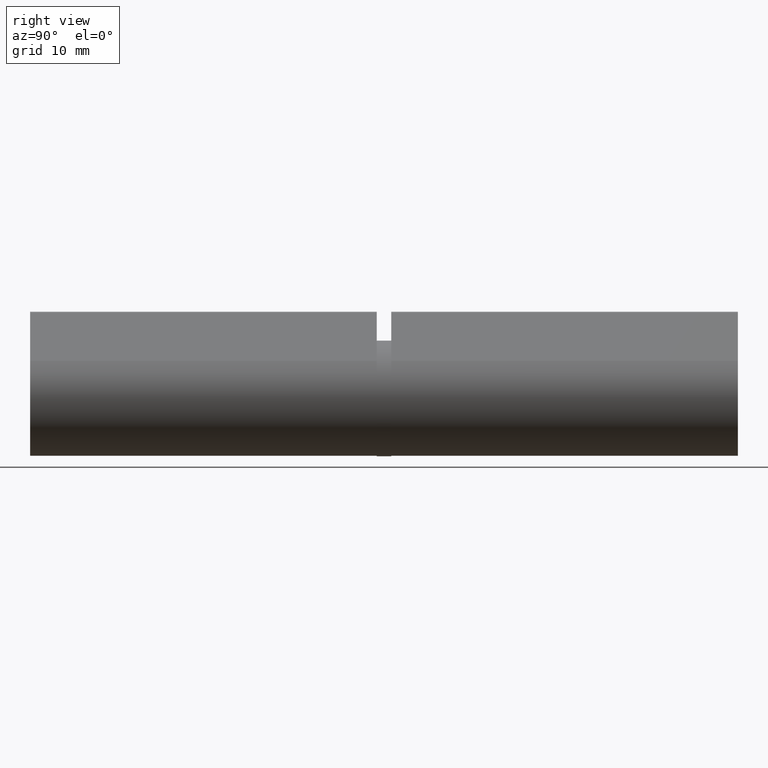
[diagram: clean part render]
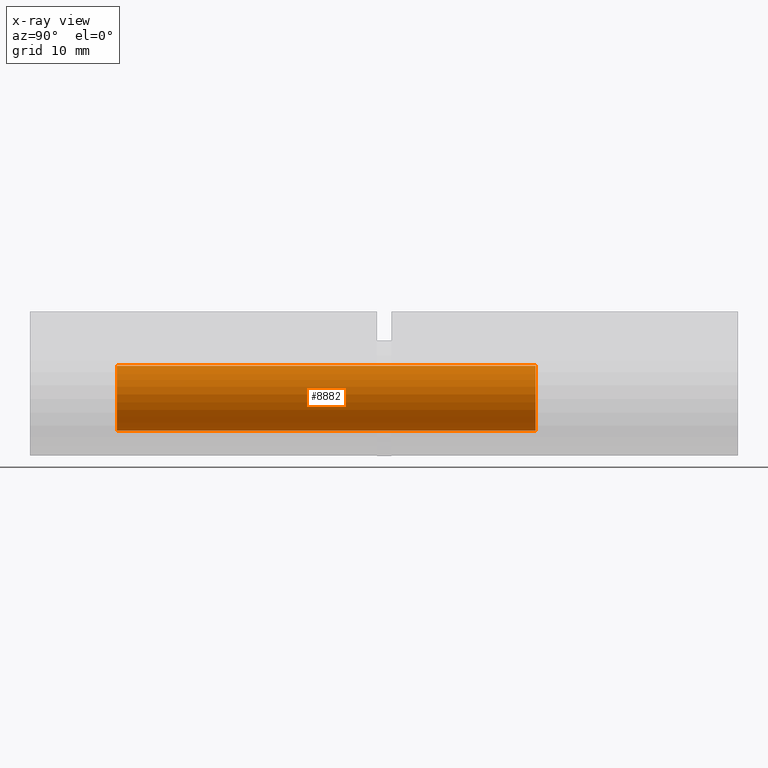
[diagram: x-ray — body ghosted, one internal face saturated and labeled with its STEP entity id]
A machine part, right view, then the same camera in x-ray: the body is ghosted and one INTERNAL B-rep face — a face not visible from any outside direction — is saturated and labeled: STEP entity #8882.
In plain terms, the highlighted cylindrical surface (bore or boss wall) has radius 4.5 mm, axis along (0, 1, 0).
Its self-contained STEP definition (entity closure, byte-faithful):
#49 = EDGE_LOOP ( 'NONE', ( #2289 ) ) ;
#163 = DIRECTION ( 'NONE',  ( 0.000000000000000000, -1.000000000000000000, 0.000000000000000000 ) ) ;
#726 = DIRECTION ( 'NONE',  ( 0.000000000000000000, 1.000000000000000000, 0.000000000000000000 ) ) ;
#2289 = ORIENTED_EDGE ( 'NONE', *, *, #11504, .T. ) ;
#2585 = EDGE_LOOP ( 'NONE', ( #9663 ) ) ;
#2964 = AXIS2_PLACEMENT_3D ( 'NONE', #6114, #13338, #13254 ) ;
#3778 = CIRCLE ( 'NONE', #7243, 4.500000000000003553 ) ;
#3907 = CARTESIAN_POINT ( 'NONE',  ( 0.000000000000000000, -26.72792206135786586, 0.000000000000000000 ) ) ;
#4040 = VERTEX_POINT ( 'NONE', #9925 ) ;
#6044 = CYLINDRICAL_SURFACE ( 'NONE', #11928, 4.500000000000003553 ) ;
#6114 = CARTESIAN_POINT ( 'NONE',  ( 0.000000000000000000, -11.99999999999999822, 0.000000000000000000 ) ) ;
#6308 = CARTESIAN_POINT ( 'NONE',  ( 0.000000000000000000, 46.00000000000000000, 0.000000000000000000 ) ) ;
#7243 = AXIS2_PLACEMENT_3D ( 'NONE', #6308, #163, #7371 ) ;
#7371 = DIRECTION ( 'NONE',  ( 0.000000000000000000, 0.000000000000000000, 1.000000000000000000 ) ) ;
#7507 = FACE_OUTER_BOUND ( 'NONE', #49, .T. ) ;
#8882 = ADVANCED_FACE ( 'NONE', ( #7507, #9108 ), #6044, .T. ) ;
#9108 = FACE_OUTER_BOUND ( 'NONE', #2585, .T. ) ;
#9663 = ORIENTED_EDGE ( 'NONE', *, *, #12719, .F. ) ;
#9925 = CARTESIAN_POINT ( 'NONE',  ( 0.000000000000000000, 46.00000000000000000, 4.500000000000003553 ) ) ;
#11504 = EDGE_CURVE ( 'NONE', #4040, #4040, #3778, .T. ) ;
#11913 = VERTEX_POINT ( 'NONE', #12864 ) ;
#11928 = AXIS2_PLACEMENT_3D ( 'NONE', #3907, #726, #13047 ) ;
#12687 = CIRCLE ( 'NONE', #2964, 4.500000000000003553 ) ;
#12719 = EDGE_CURVE ( 'NONE', #11913, #11913, #12687, .T. ) ;
#12864 = CARTESIAN_POINT ( 'NONE',  ( 0.000000000000000000, -11.99999999999999822, 4.500000000000003553 ) ) ;
#13047 = DIRECTION ( 'NONE',  ( 0.000000000000000000, 0.000000000000000000, 1.000000000000000000 ) ) ;
#13254 = DIRECTION ( 'NONE',  ( 0.000000000000000000, 0.000000000000000000, 1.000000000000000000 ) ) ;
#13338 = DIRECTION ( 'NONE',  ( -0.000000000000000000, -1.000000000000000000, -0.000000000000000000 ) ) ;